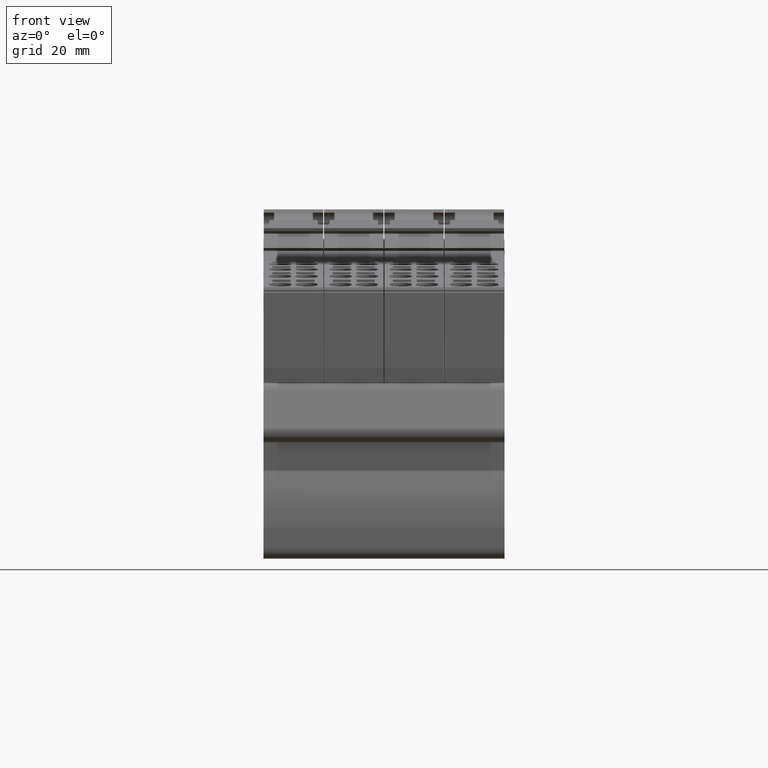
[diagram: clean part render]
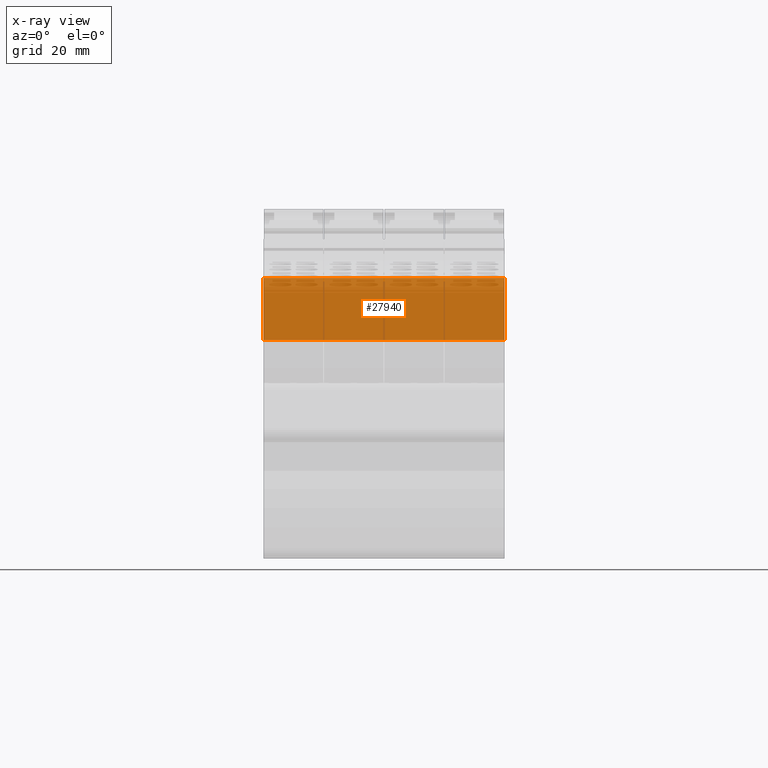
[diagram: x-ray — body ghosted, one internal face saturated and labeled with its STEP entity id]
A machine part, front view, then the same camera in x-ray: the body is ghosted and one INTERNAL B-rep face — a face not visible from any outside direction — is saturated and labeled: STEP entity #27940.
In plain terms, the highlighted planar face has unit normal (0, 0.8829, -0.4695).
Its self-contained STEP definition (entity closure, byte-faithful):
#4880=CARTESIAN_POINT('',(245.956559916688,-18.9076132978665,36.45));
#4890=VERTEX_POINT('',#4880);
#4920=CARTESIAN_POINT('',(236.570077732837,-36.5610187575385,36.45));
#4930=DIRECTION('',(-0.469471562785825,-0.882947592858962,0.));
#4940=VECTOR('',#4930,1.);
#4950=LINE('',#4920,#4940);
#4960=CARTESIAN_POINT('',(252.619553665123,-6.37634461674427,36.45));
#4970=VERTEX_POINT('',#4960);
#4980=EDGE_CURVE('',#4970,#4890,#4950,.T.);
#12180=CARTESIAN_POINT('',(252.619553665123,-6.37634461674427,-12.15));
#12190=VERTEX_POINT('',#12180);
#12220=CARTESIAN_POINT('',(256.009916237369,0.,-12.15));
#12230=DIRECTION('',(0.469471562785825,0.882947592858962,0.));
#12240=VECTOR('',#12230,1.);
#12250=LINE('',#12220,#12240);
#12260=CARTESIAN_POINT('',(245.956559916688,-18.9076132978665,-12.15));
#12270=VERTEX_POINT('',#12260);
#12280=EDGE_CURVE('',#12270,#12190,#12250,.T.);
#15960=CARTESIAN_POINT('',(252.619553665123,-6.37634461674428,-12.15));
#15970=DIRECTION('',(0.,0.,-1.));
#15980=VECTOR('',#15970,1.);
#15990=LINE('',#15960,#15980);
#16000=EDGE_CURVE('',#4970,#12190,#15990,.T.);
#27780=CARTESIAN_POINT('',(252.511133851863,-6.58025262891073,-12.15));
#27790=DIRECTION('',(0.882947592858962,-0.469471562785825,0.));
#27800=DIRECTION('',(0.469471562785825,0.882947592858962,0.));
#27810=AXIS2_PLACEMENT_3D('',#27780,#27790,#27800);
#27820=PLANE('',#27810);
#27830=ORIENTED_EDGE('',*,*,#12280,.F.);
#27840=ORIENTED_EDGE('',*,*,#16000,.T.);
#27850=ORIENTED_EDGE('',*,*,#4980,.F.);
#27860=CARTESIAN_POINT('',(245.956559916688,-18.9076132978665,-12.15));
#27870=DIRECTION('',(0.,0.,1.));
#27880=VECTOR('',#27870,1.);
#27890=LINE('',#27860,#27880);
#27900=EDGE_CURVE('',#12270,#4890,#27890,.T.);
#27910=ORIENTED_EDGE('',*,*,#27900,.T.);
#27920=EDGE_LOOP('',(#27910,#27850,#27840,#27830));
#27930=FACE_OUTER_BOUND('',#27920,.T.);
#27940=ADVANCED_FACE('',(#27930),#27820,.F.);